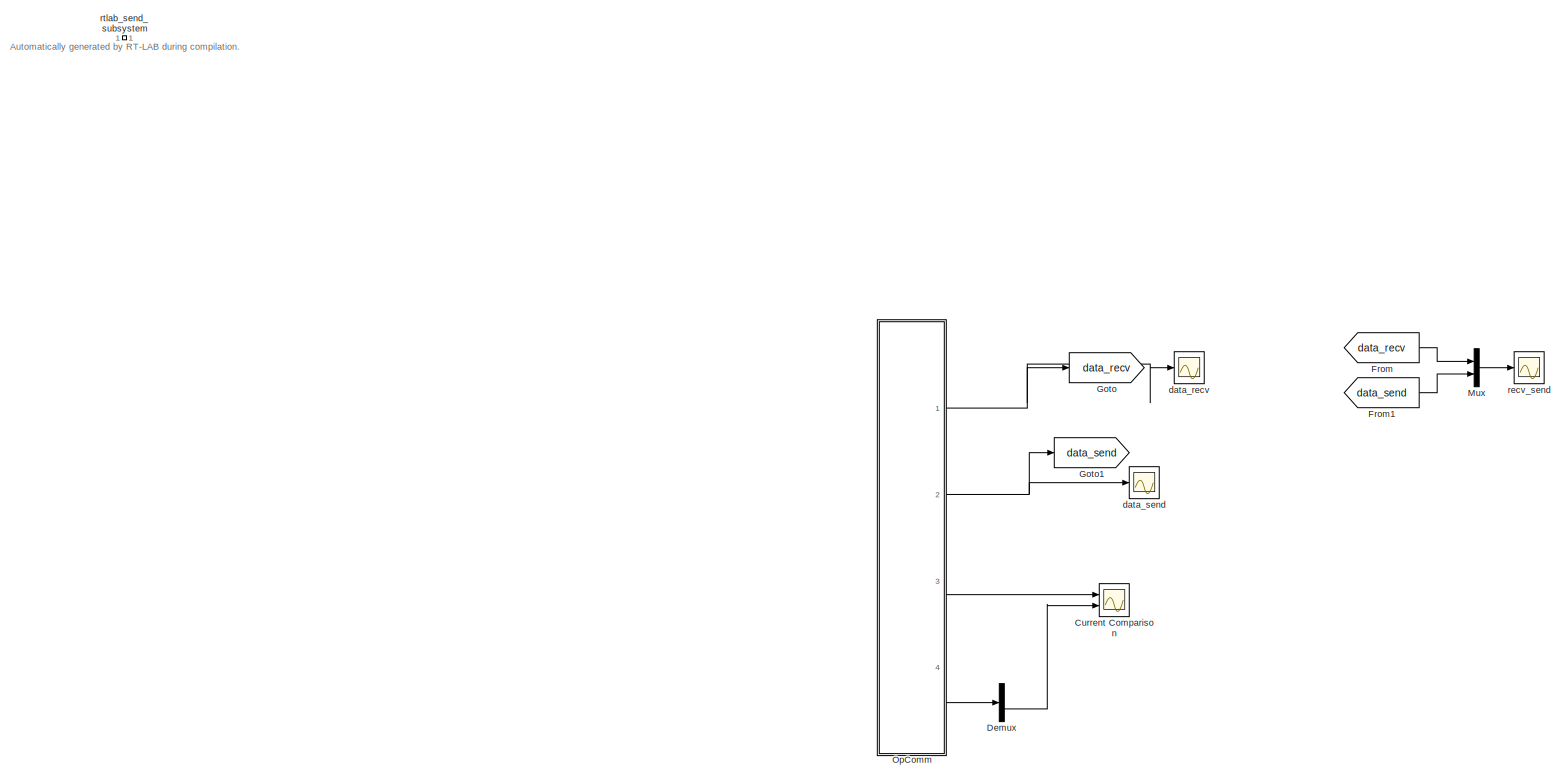
[diagram: root canvas - part 1/1, most of the canvas]
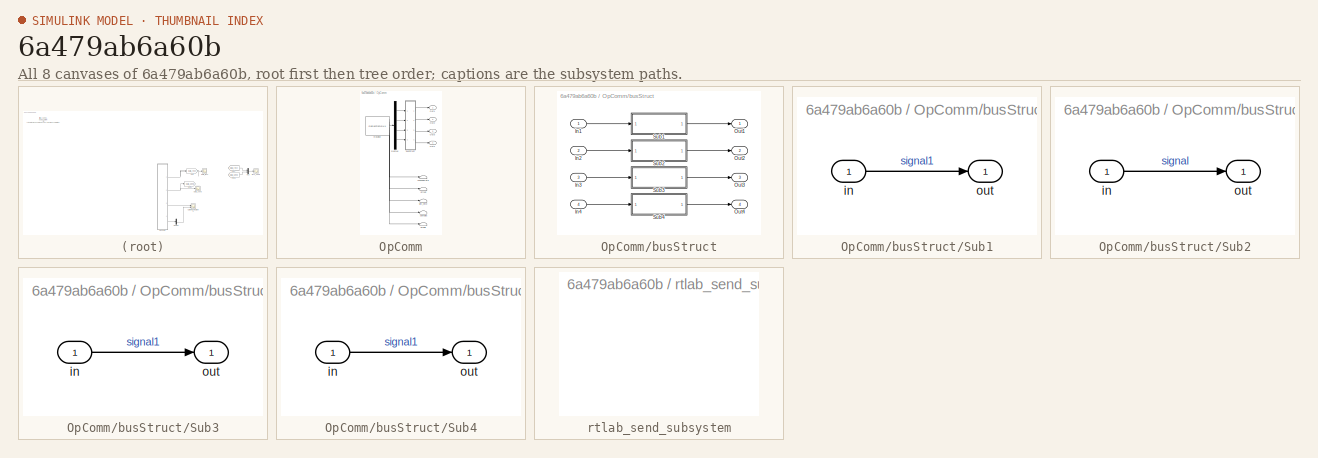
[diagram: thumbnail index - all 8 canvases of the model, root first then tree order]
MODEL slx_6a479ab6a60b
KIND model
CONFIG AbsTol = auto
CONFIG EnableMultiTasking = off
CONFIG FixedStep = 7.5e-05
CONFIG InitFcn = Ts=75e-6;
CONFIG MaxStep = auto
CONFIG MinStep = auto
CONFIG PostLoadFcn = Ts=75e-6;
CONFIG RelTol = 1e-3
CONFIG SampleTimeConstraint = Unconstrained
CONFIG SolverName = ode4
CONFIG StartTime = 0.0
CONFIG StopTime = inf
BLOCK [Scope] Current Comparison
  Floating = off
  NumInputPorts = 2
  Ports = [2]
  ScopeSpecificationString = Simulink.scopes.TimeScopeBlockCfg('CurrentConfiguration', extmgr.ConfigurationSet(extmgr.Configuration('Core','General UI',true),extmgr.Configuration('Core','Source UI',true),extmgr.Configuration('Sources','WiredSimulink',true,'DataLoggingVariableName','ScopeData1','DataLoggingLimitDataPoints',true),extmgr.Configuration('Visuals','Time Domain',true),extmgr.Configuration('Tools','Plot Navigation',t...<+92ch>
BLOCK [Demux] Demux
  Outputs = 2
  Ports = [1, 2]
BLOCK [From] From
  GotoTag = data_recv
BLOCK [From] From1
  GotoTag = data_send
BLOCK [Goto] Goto
  GotoTag = data_recv
BLOCK [Goto] Goto1
  GotoTag = data_send
BLOCK [Mux] Mux
  DisplayOption = bar
  Inputs = 2
  Ports = [2, 1]
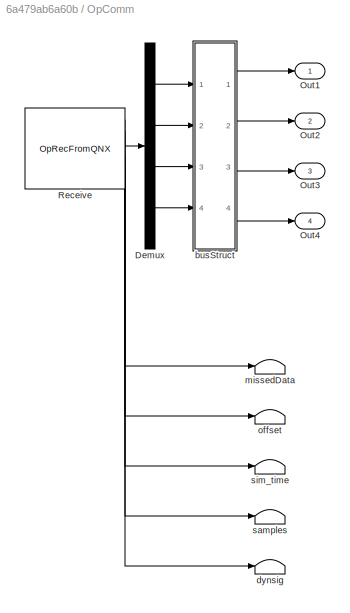
BLOCK [SubSystem] OpComm
  Ports = [0, 4]
  RequestExecContextInheritance = off
BLOCK [Demux] OpComm/Demux
  Outputs = [3  3  3  6]
  Ports = [1, 4]
BLOCK [Outport] OpComm/Out1
BLOCK [Outport] OpComm/Out2
  Port = 2
BLOCK [Outport] OpComm/Out3
  Port = 3
BLOCK [Outport] OpComm/Out4
  Port = 4
BLOCK [Reference] OpComm/Receive  REF=opal_lib/Communication/OpRecFromQNX
  Ports = [0, 6]
  SourceBlock = opal_lib/Communication/OpRecFromQNX
  SourceType = OPAL Receive Icon
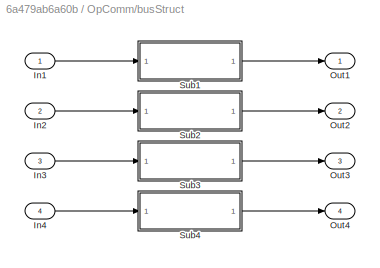
BLOCK [SubSystem] OpComm/busStruct
  Ports = [4, 4]
  RequestExecContextInheritance = off
BLOCK [Inport] OpComm/busStruct/In1
BLOCK [Inport] OpComm/busStruct/In2
  Port = 2
BLOCK [Inport] OpComm/busStruct/In3
  Port = 3
BLOCK [Inport] OpComm/busStruct/In4
  Port = 4
BLOCK [Outport] OpComm/busStruct/Out1
BLOCK [Outport] OpComm/busStruct/Out2
  Port = 2
BLOCK [Outport] OpComm/busStruct/Out3
  Port = 3
BLOCK [Outport] OpComm/busStruct/Out4
  Port = 4
BLOCK [SubSystem] OpComm/busStruct/Sub1
  Ports = [1, 1]
  RequestExecContextInheritance = off
BLOCK [Inport] OpComm/busStruct/Sub1/in
BLOCK [Outport] OpComm/busStruct/Sub1/out
BLOCK [SubSystem] OpComm/busStruct/Sub2
  Ports = [1, 1]
  RequestExecContextInheritance = off
BLOCK [Inport] OpComm/busStruct/Sub2/in
BLOCK [Outport] OpComm/busStruct/Sub2/out
BLOCK [SubSystem] OpComm/busStruct/Sub3
  Ports = [1, 1]
  RequestExecContextInheritance = off
BLOCK [Inport] OpComm/busStruct/Sub3/in
BLOCK [Outport] OpComm/busStruct/Sub3/out
BLOCK [SubSystem] OpComm/busStruct/Sub4
  Ports = [1, 1]
  RequestExecContextInheritance = off
BLOCK [Inport] OpComm/busStruct/Sub4/in
BLOCK [Outport] OpComm/busStruct/Sub4/out
BLOCK [Terminator] OpComm/dynsig
BLOCK [Terminator] OpComm/missedData
BLOCK [Terminator] OpComm/offset
BLOCK [Terminator] OpComm/samples
BLOCK [Terminator] OpComm/sim_time
BLOCK [Scope] data_recv
  Floating = off
  NumInputPorts = 1
  Ports = [1]
  ScopeSpecificationString = Simulink.scopes.TimeScopeBlockCfg('CurrentConfiguration', extmgr.ConfigurationSet(extmgr.Configuration('Core','General UI',true),extmgr.Configuration('Core','Source UI',true),extmgr.Configuration('Sources','WiredSimulink',true,'DataLoggingVariableName','ScopeData3','DataLoggingSaveFormat','StructureWithTime','DataLoggingLimitDataPoints',true,'DataLoggingDecimation','1','DataLoggingDecimateData',tr...<+1635ch>
BLOCK [Scope] data_send
  Floating = off
  NumInputPorts = 1
  Ports = [1]
  ScopeSpecificationString = Simulink.scopes.TimeScopeBlockCfg('CurrentConfiguration', extmgr.ConfigurationSet(extmgr.Configuration('Core','General UI',true),extmgr.Configuration('Core','Source UI',true),extmgr.Configuration('Sources','WiredSimulink',true,'DataLoggingVariableName','ScopeData4','DataLoggingSaveFormat','StructureWithTime','DataLoggingLimitDataPoints',true,'DataLoggingDecimation','1','DataLoggingDecimateData',tr...<+1928ch>
BLOCK [Scope] recv_send
  Floating = off
  NumInputPorts = 1
  Ports = [1]
  ScopeSpecificationString = Simulink.scopes.TimeScopeBlockCfg('CurrentConfiguration', extmgr.ConfigurationSet(extmgr.Configuration('Core','General UI',true),extmgr.Configuration('Core','Source UI',true),extmgr.Configuration('Sources','WiredSimulink',true,'DataLoggingSaveFormat','StructureWithTime','DataLoggingLimitDataPoints',true,'DataLoggingDecimation','1','DataLoggingDecimateData',true),extmgr.Configuration('Visuals','Tim...<+1840ch>
BLOCK [SubSystem] rtlab_send_subsystem
  Ports = []
  Priority = -100
  RequestExecContextInheritance = off
ANNOTATION (root): Automatically generated by RT-LAB during compilation.
LINE Demux:2 -> Current Comparison:2
LINE From1:1 -> Mux:2
LINE From:1 -> Mux:1
LINE Mux:1 -> recv_send:1
LINE OpComm/Demux:1 -> OpComm/busStruct:1
LINE OpComm/Demux:2 -> OpComm/busStruct:2
LINE OpComm/Demux:3 -> OpComm/busStruct:3
LINE OpComm/Demux:4 -> OpComm/busStruct:4
LINE OpComm/Receive:1 -> OpComm/Demux:1
LINE OpComm/Receive:2 -> OpComm/missedData:1
LINE OpComm/Receive:3 -> OpComm/offset:1
LINE OpComm/Receive:4 -> OpComm/sim_time:1
LINE OpComm/Receive:5 -> OpComm/samples:1
LINE OpComm/Receive:6 -> OpComm/dynsig:1
LINE OpComm/busStruct/In1:1 -> OpComm/busStruct/Sub1:1
LINE OpComm/busStruct/In2:1 -> OpComm/busStruct/Sub2:1
LINE OpComm/busStruct/In3:1 -> OpComm/busStruct/Sub3:1
LINE OpComm/busStruct/In4:1 -> OpComm/busStruct/Sub4:1
LINE OpComm/busStruct/Sub1/in:1 -> OpComm/busStruct/Sub1/out:1
LINE OpComm/busStruct/Sub1:1 -> OpComm/busStruct/Out1:1
LINE OpComm/busStruct/Sub2/in:1 -> OpComm/busStruct/Sub2/out:1
LINE OpComm/busStruct/Sub2:1 -> OpComm/busStruct/Out2:1
LINE OpComm/busStruct/Sub3/in:1 -> OpComm/busStruct/Sub3/out:1
LINE OpComm/busStruct/Sub3:1 -> OpComm/busStruct/Out3:1
LINE OpComm/busStruct/Sub4/in:1 -> OpComm/busStruct/Sub4/out:1
LINE OpComm/busStruct/Sub4:1 -> OpComm/busStruct/Out4:1
LINE OpComm/busStruct:1 -> OpComm/Out1:1
LINE OpComm/busStruct:2 -> OpComm/Out2:1
LINE OpComm/busStruct:3 -> OpComm/Out3:1
LINE OpComm/busStruct:4 -> OpComm/Out4:1
NET OpComm:1 -> Goto:1, data_recv:1
NET OpComm:2 -> Goto1:1, data_send:1
LINE OpComm:3 -> Current Comparison:1
LINE OpComm:4 -> Demux:1
note: NET lines group one-source signal fan-out (src -> all destinations, sorted); 1:1 wires keep LINE
